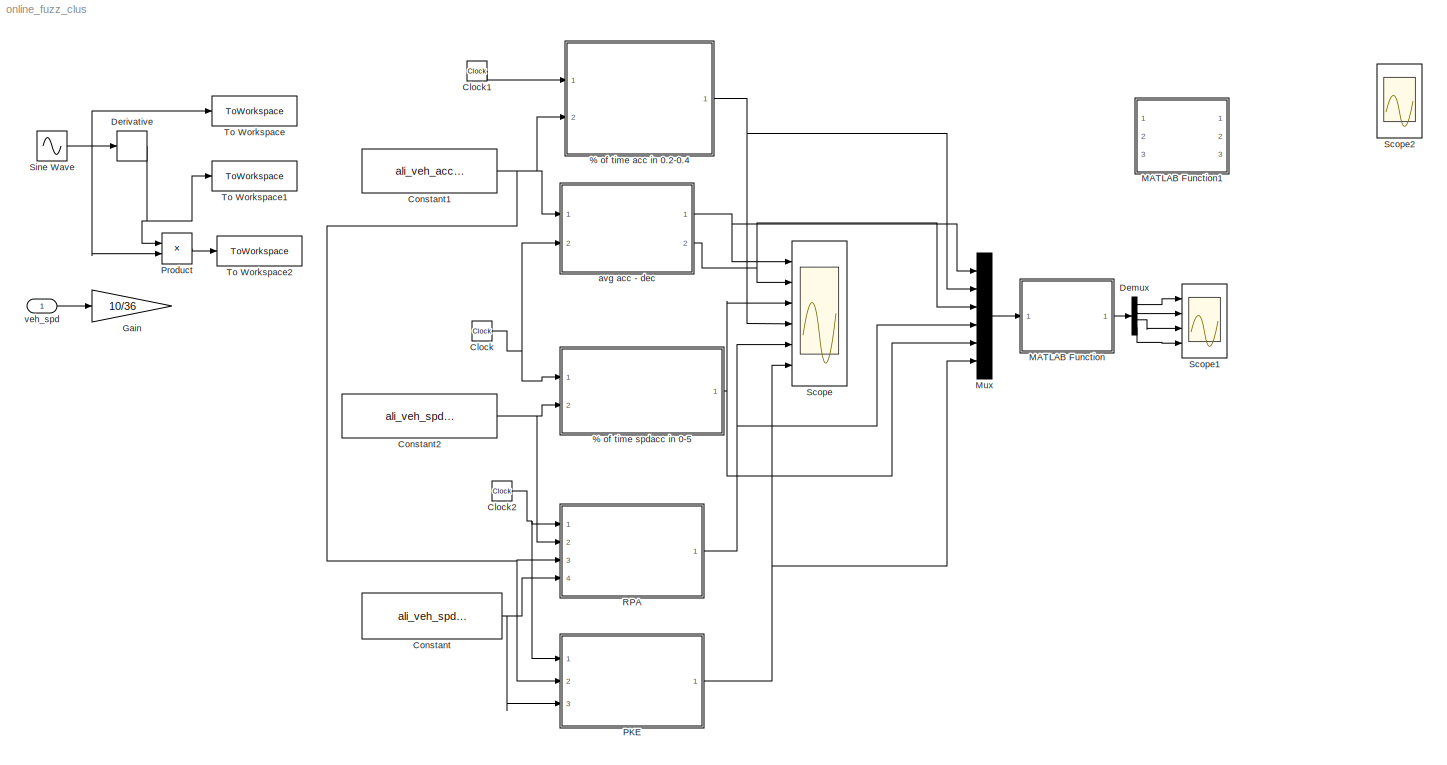
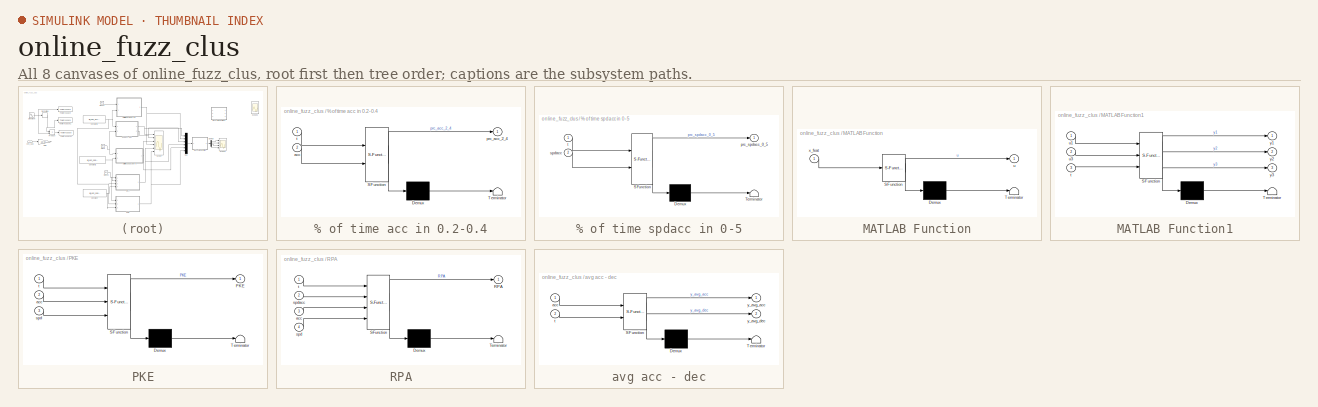
[diagram: thumbnail index - all 8 canvases of the model, root first then tree order]
MODEL online_fuzz_clus
KIND model
BLOCK [SubSystem] % of time acc in 0.2-0.4
  ErrorFcn = Stateflow.Translate.translate
  FunctionWithSeparateData = off
  MaskDescription = Embedded MATLAB block
  MaskDisplay = bgColor = Simulink.Root.ColorString2Rgb(get_param(gcbh, 'BackgroundColor')); image(imread('private/eml_membrane_16.png','png','BackgroundColor',bgColor(1:3)),'center'); disp([10 10 'fcn']);  <repeated x7 — deduplicated; at blocks: % of time acc in 0.2-0.4, % of time spdacc in 0-5, MATLAB Function, MATLAB Function1, PKE, RPA, avg acc - dec>
  MaskHideContents = off
  MaskIconFrame = on
  MaskIconOpaque = off
  MaskIconRotate = none
  MaskIconUnits = normalized
  MaskPortRotate = default
  MaskSelfModifiable = on
  MaskType = Stateflow
  MinAlgLoopOccurrences = off
  Opaque = off
  PermitHierarchicalResolution = ExplicitOnly
  Ports = [2, 1]
  PropExecContextOutsideSubsystem = off
  RTWSystemCode = Auto
  RequestExecContextInheritance = off
  SID = 79
  TreatAsAtomicUnit = on
BLOCK [Demux] % of time acc in 0.2-0.4/ Demux 
  Outputs = 1
  Ports = [1, 1]
  SID = 79::15
BLOCK [S-Function] % of time acc in 0.2-0.4/ SFunction 
  EnableBusSupport = on
  FunctionName = sf_sfun
  PortCounts = [2 2]
  Ports = [2, 2]
  SID = 79::14
  Tag = Stateflow S-Function online_fuzz_clus 3
BLOCK [Terminator] % of time acc in 0.2-0.4/ Terminator 
  SID = 79::17
BLOCK [Inport] % of time acc in 0.2-0.4/acc
  IconDisplay = Port number
  Port = 2
  SID = 79::21
BLOCK [Outport] % of time acc in 0.2-0.4/prc_acc_2_4
  IconDisplay = Port number
  SID = 79::5
BLOCK [Inport] % of time acc in 0.2-0.4/t
  IconDisplay = Port number
  SID = 79::18
BLOCK [SubSystem] % of time spdacc in 0-5
  ErrorFcn = Stateflow.Translate.translate
  FunctionWithSeparateData = off
  MaskDescription = Embedded MATLAB block
  MaskHideContents = off
  MaskIconFrame = on
  MaskIconOpaque = off
  MaskIconRotate = none
  MaskIconUnits = normalized
  MaskPortRotate = default
  MaskSelfModifiable = on
  MaskType = Stateflow
  MinAlgLoopOccurrences = off
  Opaque = off
  PermitHierarchicalResolution = ExplicitOnly
  Ports = [2, 1]
  PropExecContextOutsideSubsystem = off
  RTWSystemCode = Auto
  RequestExecContextInheritance = off
  SID = 69
  TreatAsAtomicUnit = on
BLOCK [Demux] % of time spdacc in 0-5/ Demux 
  Outputs = 1
  Ports = [1, 1]
  SID = 69::15
BLOCK [S-Function] % of time spdacc in 0-5/ SFunction 
  EnableBusSupport = on
  FunctionName = sf_sfun
  PortCounts = [2 2]
  Ports = [2, 2]
  SID = 69::14
  Tag = Stateflow S-Function online_fuzz_clus 2
BLOCK [Terminator] % of time spdacc in 0-5/ Terminator 
  SID = 69::17
BLOCK [Outport] % of time spdacc in 0-5/prc_spdacc_0_5
  IconDisplay = Port number
  SID = 69::5
BLOCK [Inport] % of time spdacc in 0-5/spdacc
  IconDisplay = Port number
  Port = 2
  SID = 69::21
BLOCK [Inport] % of time spdacc in 0-5/t
  IconDisplay = Port number
  SID = 69::18
BLOCK [Clock] Clock
  Decimation = 10
  SID = 66
BLOCK [Clock] Clock1
  Decimation = 10
  SID = 80
BLOCK [Clock] Clock2
  Decimation = 10
  SID = 82
BLOCK [Constant] Constant
  SID = 68
  Value = ali_veh_spd.signals.values
BLOCK [Constant] Constant1
  SID = 74
  Value = ali_veh_acc.signals.values
BLOCK [Constant] Constant2
  SID = 75
  Value = ali_veh_spdacc.signals.values
BLOCK [Demux] Demux
  DisplayOption = bar
  Ports = [1, 4]
  SID = 89
BLOCK [Derivative] Derivative
  SID = 53
BLOCK [Gain] Gain
  Gain = 10/36
  OutDataTypeStr = Inherit: Inherit via internal rule
  ParamDataTypeStr = Inherit: Inherit via internal rule
  SID = 85
  SaturateOnIntegerOverflow = off
BLOCK [SubSystem] MATLAB Function
  ErrorFcn = Stateflow.Translate.translate
  FunctionWithSeparateData = off
  MaskDescription = Embedded MATLAB block
  MaskHideContents = off
  MaskIconFrame = on
  MaskIconOpaque = off
  MaskIconRotate = none
  MaskIconUnits = normalized
  MaskPortRotate = default
  MaskSelfModifiable = on
  MaskType = Stateflow
  MinAlgLoopOccurrences = off
  Opaque = off
  PermitHierarchicalResolution = ExplicitOnly
  Ports = [1, 1]
  PropExecContextOutsideSubsystem = off
  RTWSystemCode = Auto
  RequestExecContextInheritance = off
  SID = 86
  TreatAsAtomicUnit = on
BLOCK [Demux] MATLAB Function/ Demux 
  Outputs = 1
  Ports = [1, 1]
  SID = 86::15
BLOCK [S-Function] MATLAB Function/ SFunction 
  EnableBusSupport = on
  FunctionName = sf_sfun
  Parameters = teta
  PortCounts = [1 2]
  Ports = [1, 2]
  SID = 86::14
  Tag = Stateflow S-Function online_fuzz_clus 6
BLOCK [Terminator] MATLAB Function/ Terminator 
  SID = 86::17
BLOCK [Outport] MATLAB Function/u
  IconDisplay = Port number
  SID = 86::5
BLOCK [Inport] MATLAB Function/x_feat
  IconDisplay = Port number
  SID = 86::1
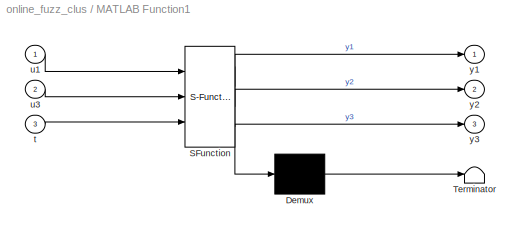
BLOCK [SubSystem] MATLAB Function1
  ErrorFcn = Stateflow.Translate.translate
  FunctionWithSeparateData = off
  MaskDescription = Embedded MATLAB block
  MaskHideContents = off
  MaskIconFrame = on
  MaskIconOpaque = off
  MaskIconRotate = none
  MaskIconUnits = normalized
  MaskPortRotate = default
  MaskSelfModifiable = on
  MaskType = Stateflow
  MinAlgLoopOccurrences = off
  Opaque = off
  PermitHierarchicalResolution = ExplicitOnly
  Ports = [3, 3]
  PropExecContextOutsideSubsystem = off
  RTWSystemCode = Auto
  RequestExecContextInheritance = off
  SID = 91
  TreatAsAtomicUnit = on
BLOCK [Demux] MATLAB Function1/ Demux 
  Outputs = 1
  Ports = [1, 1]
  SID = 91::15
BLOCK [S-Function] MATLAB Function1/ SFunction 
  EnableBusSupport = on
  FunctionName = sf_sfun
  Parameters = u2
  PortCounts = [3 4]
  Ports = [3, 4]
  SID = 91::14
  Tag = Stateflow S-Function online_fuzz_clus 7
BLOCK [Terminator] MATLAB Function1/ Terminator 
  SID = 91::17
BLOCK [Inport] MATLAB Function1/t
  IconDisplay = Port number
  Port = 3
  SID = 91::20
BLOCK [Inport] MATLAB Function1/u1
  IconDisplay = Port number
  SID = 91::1
BLOCK [Inport] MATLAB Function1/u3
  IconDisplay = Port number
  Port = 2
  SID = 91::19
BLOCK [Outport] MATLAB Function1/y1
  IconDisplay = Port number
  SID = 91::5
BLOCK [Outport] MATLAB Function1/y2
  IconDisplay = Port number
  Port = 2
  SID = 91::21
BLOCK [Outport] MATLAB Function1/y3
  IconDisplay = Port number
  Port = 3
  SID = 91::22
BLOCK [Mux] Mux
  DisplayOption = bar
  Inputs = 6
  Ports = [6, 1]
  SID = 87
BLOCK [SubSystem] PKE
  ErrorFcn = Stateflow.Translate.translate
  FunctionWithSeparateData = off
  MaskDescription = Embedded MATLAB block
  MaskHideContents = off
  MaskIconFrame = on
  MaskIconOpaque = off
  MaskIconRotate = none
  MaskIconUnits = normalized
  MaskPortRotate = default
  MaskSelfModifiable = on
  MaskType = Stateflow
  MinAlgLoopOccurrences = off
  Opaque = off
  PermitHierarchicalResolution = ExplicitOnly
  Ports = [3, 1]
  PropExecContextOutsideSubsystem = off
  RTWSystemCode = Auto
  RequestExecContextInheritance = off
  SID = 84
  TreatAsAtomicUnit = on
BLOCK [Demux] PKE/ Demux 
  Outputs = 1
  Ports = [1, 1]
  SID = 84::15
BLOCK [S-Function] PKE/ SFunction 
  EnableBusSupport = on
  FunctionName = sf_sfun
  PortCounts = [3 2]
  Ports = [3, 2]
  SID = 84::14
  Tag = Stateflow S-Function online_fuzz_clus 5
BLOCK [Terminator] PKE/ Terminator 
  SID = 84::17
BLOCK [Outport] PKE/PKE
  IconDisplay = Port number
  SID = 84::5
BLOCK [Inport] PKE/acc
  IconDisplay = Port number
  Port = 2
  SID = 84::22
BLOCK [Inport] PKE/spd
  IconDisplay = Port number
  Port = 3
  SID = 84::23
BLOCK [Inport] PKE/t
  IconDisplay = Port number
  SID = 84::18
BLOCK [Product] Product
  InputSameDT = off
  OutDataTypeStr = Inherit: Inherit via internal rule
  Ports = [2, 1]
  SID = 71
  SaturateOnIntegerOverflow = off
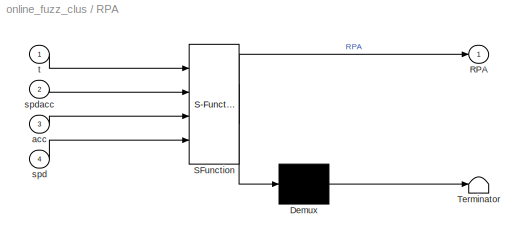
BLOCK [SubSystem] RPA
  ErrorFcn = Stateflow.Translate.translate
  FunctionWithSeparateData = off
  MaskDescription = Embedded MATLAB block
  MaskHideContents = off
  MaskIconFrame = on
  MaskIconOpaque = off
  MaskIconRotate = none
  MaskIconUnits = normalized
  MaskPortRotate = default
  MaskSelfModifiable = on
  MaskType = Stateflow
  MinAlgLoopOccurrences = off
  Opaque = off
  PermitHierarchicalResolution = ExplicitOnly
  Ports = [4, 1]
  PropExecContextOutsideSubsystem = off
  RTWSystemCode = Auto
  RequestExecContextInheritance = off
  SID = 83
  TreatAsAtomicUnit = on
BLOCK [Demux] RPA/ Demux 
  Outputs = 1
  Ports = [1, 1]
  SID = 83::15
BLOCK [S-Function] RPA/ SFunction 
  EnableBusSupport = on
  FunctionName = sf_sfun
  PortCounts = [4 2]
  Ports = [4, 2]
  SID = 83::14
  Tag = Stateflow S-Function online_fuzz_clus 4
BLOCK [Terminator] RPA/ Terminator 
  SID = 83::17
BLOCK [Outport] RPA/RPA
  IconDisplay = Port number
  SID = 83::5
BLOCK [Inport] RPA/acc
  IconDisplay = Port number
  Port = 3
  SID = 83::22
BLOCK [Inport] RPA/spd
  IconDisplay = Port number
  Port = 4
  SID = 83::23
BLOCK [Inport] RPA/spdacc
  IconDisplay = Port number
  Port = 2
  SID = 83::21
BLOCK [Inport] RPA/t
  IconDisplay = Port number
  SID = 83::18
BLOCK [Scope] Scope
  DataFormat = StructureWithTime
  Floating = off
  LimitDataPoints = off
  NumInputPorts = 6
  Ports = [6]
  SID = 70
  SampleTime = 0
  YMax = 5~5~5~5~5~5
  YMin = -5~-5~-5~-5~-5~-5
BLOCK [Scope] Scope1
  DataFormat = StructureWithTime
  Floating = off
  LimitDataPoints = off
  NumInputPorts = 4
  Ports = [4]
  SID = 88
  SampleTime = 0
  SaveName = ScopeData1
  YMax = 5~5~5~5
  YMin = -5~-5~-5~-5
BLOCK [Scope] Scope2
  DataFormat = StructureWithTime
  Floating = off
  LimitDataPoints = off
  NumInputPorts = 4
  Ports = [4]
  SID = 90
  SampleTime = 0
  SaveName = ScopeData2
  YMax = 5~5~5~5
  YMin = -5~-5~-5~-5
BLOCK [Sin] Sine Wave
  Ports = [0, 1]
  SID = 65
  SampleTime = 0
BLOCK [ToWorkspace] To Workspace
  MaxDataPoints = inf
  Ports = [1]
  SID = 57
  SampleTime = -1
  SaveFormat = Structure With Time
  VariableName = ali_veh_spd
BLOCK [ToWorkspace] To Workspace1
  MaxDataPoints = inf
  Ports = [1]
  SID = 62
  SampleTime = -1
  SaveFormat = Structure With Time
  VariableName = ali_veh_acc
BLOCK [ToWorkspace] To Workspace2
  MaxDataPoints = inf
  Ports = [1]
  SID = 72
  SampleTime = -1
  SaveFormat = Structure With Time
  VariableName = ali_veh_spdacc
BLOCK [SubSystem] avg acc - dec
  ErrorFcn = Stateflow.Translate.translate
  FunctionWithSeparateData = off
  MaskDescription = Embedded MATLAB block
  MaskHideContents = off
  MaskIconFrame = on
  MaskIconOpaque = off
  MaskIconRotate = none
  MaskIconUnits = normalized
  MaskPortRotate = default
  MaskSelfModifiable = on
  MaskType = Stateflow
  MinAlgLoopOccurrences = off
  Opaque = off
  PermitHierarchicalResolution = ExplicitOnly
  Ports = [2, 2]
  PropExecContextOutsideSubsystem = off
  RTWSystemCode = Auto
  RequestExecContextInheritance = off
  SID = 78
  TreatAsAtomicUnit = on
BLOCK [Demux] avg acc - dec/ Demux 
  Outputs = 1
  Ports = [1, 1]
  SID = 78::15
BLOCK [S-Function] avg acc - dec/ SFunction 
  EnableBusSupport = on
  FunctionName = sf_sfun
  PortCounts = [2 3]
  Ports = [2, 3]
  SID = 78::14
  Tag = Stateflow S-Function online_fuzz_clus 1
BLOCK [Terminator] avg acc - dec/ Terminator 
  SID = 78::17
BLOCK [Inport] avg acc - dec/acc
  IconDisplay = Port number
  SID = 78::18
BLOCK [Inport] avg acc - dec/t
  IconDisplay = Port number
  Port = 2
  SID = 78::19
BLOCK [Outport] avg acc - dec/y_avg_acc
  IconDisplay = Port number
  SID = 78::5
BLOCK [Outport] avg acc - dec/y_avg_dec
  IconDisplay = Port number
  Port = 2
  SID = 78::20
BLOCK [Inport] veh_spd
  IconDisplay = Port number
  SID = 52
LINE % of time acc in 0.2-0.4/ Demux :1 -> % of time acc in 0.2-0.4/ Terminator :1
LINE % of time acc in 0.2-0.4/ SFunction :1 -> % of time acc in 0.2-0.4/ Demux :1
LINE % of time acc in 0.2-0.4/ SFunction :2 -> % of time acc in 0.2-0.4/prc_acc_2_4:1
LINE % of time acc in 0.2-0.4/acc:1 -> % of time acc in 0.2-0.4/ SFunction :2
LINE % of time acc in 0.2-0.4/t:1 -> % of time acc in 0.2-0.4/ SFunction :1
NET % of time acc in 0.2-0.4:1 -> Mux:2, Scope:4
LINE % of time spdacc in 0-5/ Demux :1 -> % of time spdacc in 0-5/ Terminator :1
LINE % of time spdacc in 0-5/ SFunction :1 -> % of time spdacc in 0-5/ Demux :1
LINE % of time spdacc in 0-5/ SFunction :2 -> % of time spdacc in 0-5/prc_spdacc_0_5:1
LINE % of time spdacc in 0-5/spdacc:1 -> % of time spdacc in 0-5/ SFunction :2
LINE % of time spdacc in 0-5/t:1 -> % of time spdacc in 0-5/ SFunction :1
NET % of time spdacc in 0-5:1 -> Mux:5, Scope:3
LINE Clock1:1 -> % of time acc in 0.2-0.4:1
NET Clock2:1 -> PKE:1, RPA:1
NET Clock:1 -> % of time spdacc in 0-5:1, avg acc - dec:2
NET Constant1:1 -> % of time acc in 0.2-0.4:2, PKE:2, RPA:3, avg acc - dec:1
NET Constant2:1 -> % of time spdacc in 0-5:2, RPA:2
NET Constant:1 -> PKE:3, RPA:4
LINE Demux:1 -> Scope1:1
LINE Demux:2 -> Scope1:2
LINE Demux:3 -> Scope1:3
LINE Demux:4 -> Scope1:4
NET Derivative:1 -> Product:1, To Workspace1:1
LINE MATLAB Function/ Demux :1 -> MATLAB Function/ Terminator :1
LINE MATLAB Function/ SFunction :1 -> MATLAB Function/ Demux :1
LINE MATLAB Function/ SFunction :2 -> MATLAB Function/u:1
LINE MATLAB Function/x_feat:1 -> MATLAB Function/ SFunction :1
LINE MATLAB Function1/ Demux :1 -> MATLAB Function1/ Terminator :1
LINE MATLAB Function1/ SFunction :1 -> MATLAB Function1/ Demux :1
LINE MATLAB Function1/ SFunction :2 -> MATLAB Function1/y1:1
LINE MATLAB Function1/ SFunction :3 -> MATLAB Function1/y2:1
LINE MATLAB Function1/ SFunction :4 -> MATLAB Function1/y3:1
LINE MATLAB Function1/t:1 -> MATLAB Function1/ SFunction :3
LINE MATLAB Function1/u1:1 -> MATLAB Function1/ SFunction :1
LINE MATLAB Function1/u3:1 -> MATLAB Function1/ SFunction :2
LINE MATLAB Function:1 -> Demux:1
LINE Mux:1 -> MATLAB Function:1
LINE PKE/ Demux :1 -> PKE/ Terminator :1
LINE PKE/ SFunction :1 -> PKE/ Demux :1
LINE PKE/ SFunction :2 -> PKE/PKE:1
LINE PKE/acc:1 -> PKE/ SFunction :2
LINE PKE/spd:1 -> PKE/ SFunction :3
LINE PKE/t:1 -> PKE/ SFunction :1
NET PKE:1 -> Mux:6, Scope:6
LINE Product:1 -> To Workspace2:1
LINE RPA/ Demux :1 -> RPA/ Terminator :1
LINE RPA/ SFunction :1 -> RPA/ Demux :1
LINE RPA/ SFunction :2 -> RPA/RPA:1
LINE RPA/acc:1 -> RPA/ SFunction :3
LINE RPA/spd:1 -> RPA/ SFunction :4
LINE RPA/spdacc:1 -> RPA/ SFunction :2
LINE RPA/t:1 -> RPA/ SFunction :1
NET RPA:1 -> Mux:4, Scope:5
NET Sine Wave:1 -> Derivative:1, Product:2, To Workspace:1
LINE avg acc - dec/ Demux :1 -> avg acc - dec/ Terminator :1
LINE avg acc - dec/ SFunction :1 -> avg acc - dec/ Demux :1
LINE avg acc - dec/ SFunction :2 -> avg acc - dec/y_avg_acc:1
LINE avg acc - dec/ SFunction :3 -> avg acc - dec/y_avg_dec:1
LINE avg acc - dec/acc:1 -> avg acc - dec/ SFunction :1
LINE avg acc - dec/t:1 -> avg acc - dec/ SFunction :2
NET avg acc - dec:1 -> Mux:1, Scope:1
NET avg acc - dec:2 -> Mux:3, Scope:2
LINE veh_spd:1 -> Gain:1
note: NET lines group one-source signal fan-out (src -> all destinations, sorted); 1:1 wires keep LINE
CHART avg acc - dec states=1 transitions=1
  STATE_LABEL 'eML_blk_kernel()'
CHART % of time spdacc in 0-5 states=1 transitions=1
  STATE_LABEL 'eML_blk_kernel()'
CHART % of time acc in 0.2-0.4 states=1 transitions=1
  STATE_LABEL 'eML_blk_kernel()'
CHART RPA states=1 transitions=1
  STATE_LABEL 'eML_blk_kernel()'
CHART PKE states=1 transitions=1
  STATE_LABEL 'eML_blk_kernel()'
CHART MATLAB Function states=1 transitions=1
  STATE_LABEL 'eML_blk_kernel()'
CHART MATLAB Function1 states=1 transitions=1
  STATE_LABEL 'eML_blk_kernel()'
